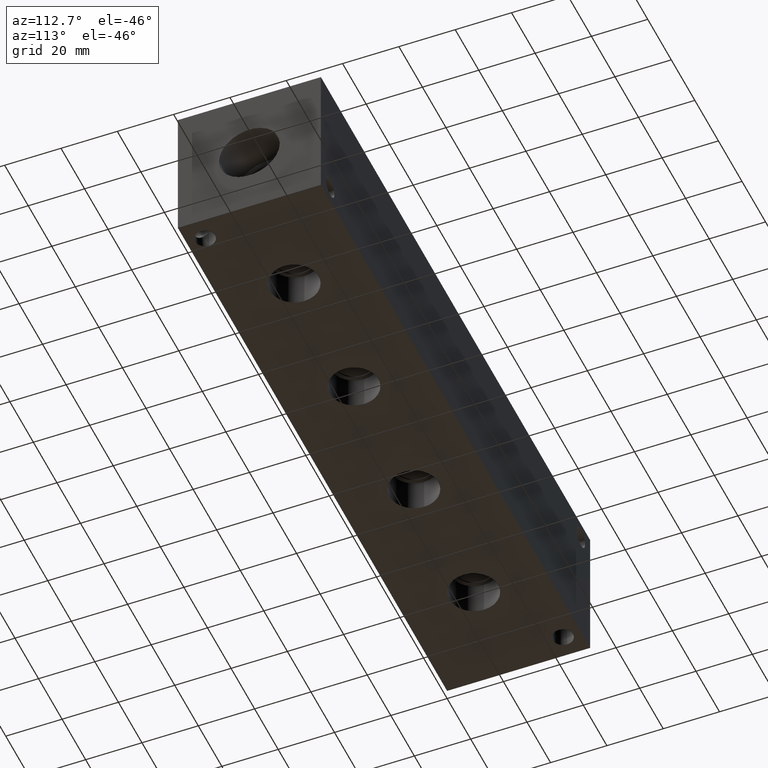
[diagram: clean part render]
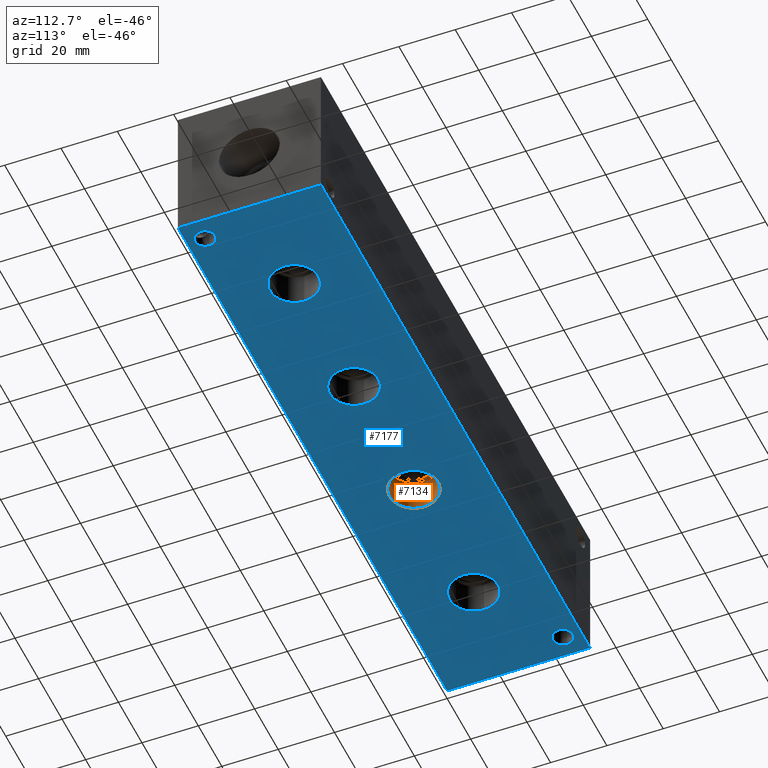
[diagram: same view with the hole feature highlighted: cylindrical wall and planar end face, labeled with their STEP entity ids]
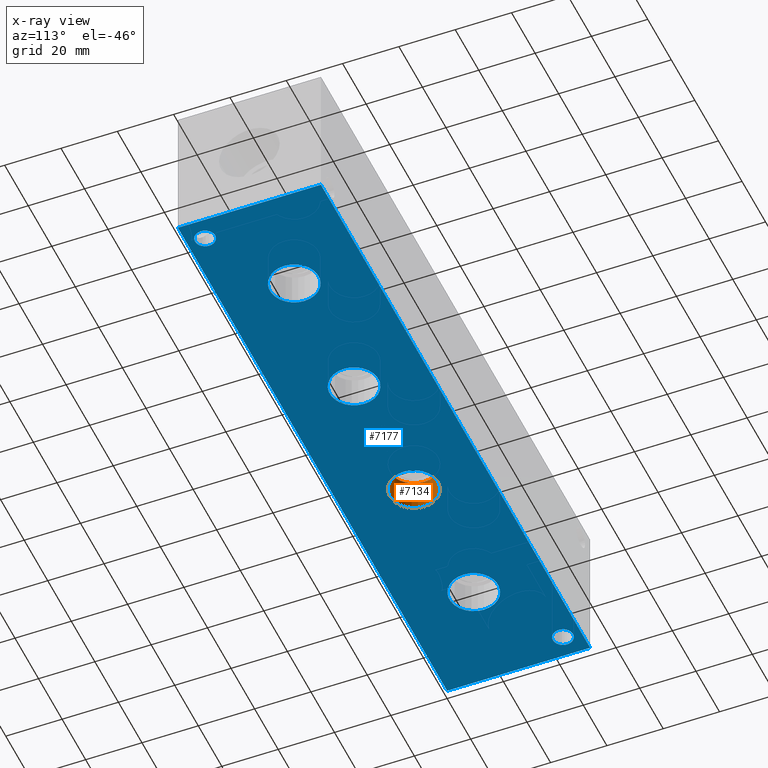
[diagram: x-ray of the same camera — body ghosted, the hole faces saturated]
A machine part, auxiliary view. The highlighted faces form one hole feature of diameter 17.2974 mm: the cylindrical wall (entity #7134, orange) and its adjacent planar end face (entity #7177, blue) — they share a circular edge in the B-rep.
The next image is the same camera in x-ray (body ghosted, the hole faces saturated) — the bore reads through the body.
Wall:
#26=CYLINDRICAL_SURFACE('',#7452,8.6487);
#88=CIRCLE('',#7449,8.6487);
#89=CIRCLE('',#7450,8.6487);
#91=CIRCLE('',#7453,8.6487);
#92=CIRCLE('',#7454,8.6487);
#755=FACE_OUTER_BOUND('',#1158,.T.);
#1158=EDGE_LOOP('',(#6199,#6200,#6201,#6202,#6203,#6204));
#1890=LINE('',#11980,#2598);
#2598=VECTOR('',#8752,8.6487);
#3414=VERTEX_POINT('',#11969);
#3415=VERTEX_POINT('',#11970);
#3417=VERTEX_POINT('',#11976);
#3418=VERTEX_POINT('',#11977);
#4362=EDGE_CURVE('',#3414,#3415,#88,.T.);
#4363=EDGE_CURVE('',#3415,#3414,#89,.T.);
#4365=EDGE_CURVE('',#3417,#3418,#91,.T.);
#4366=EDGE_CURVE('',#3418,#3417,#92,.T.);
#4367=EDGE_CURVE('',#3418,#3415,#1890,.T.);
#6199=ORIENTED_EDGE('',*,*,#4365,.F.);
#6200=ORIENTED_EDGE('',*,*,#4366,.F.);
#6201=ORIENTED_EDGE('',*,*,#4367,.T.);
#6202=ORIENTED_EDGE('',*,*,#4362,.F.);
#6203=ORIENTED_EDGE('',*,*,#4363,.F.);
#6204=ORIENTED_EDGE('',*,*,#4367,.F.);
#7134=ADVANCED_FACE('',(#755),#26,.F.);
#7449=AXIS2_PLACEMENT_3D('',#11971,#8740,#8741);
#7450=AXIS2_PLACEMENT_3D('',#11972,#8742,#8743);
#7452=AXIS2_PLACEMENT_3D('',#11975,#8746,#8747);
#7453=AXIS2_PLACEMENT_3D('',#11978,#8748,#8749);
#7454=AXIS2_PLACEMENT_3D('',#11979,#8750,#8751);
#8740=DIRECTION('center_axis',(0.,0.,-1.));
#8741=DIRECTION('ref_axis',(1.,0.,0.));
#8742=DIRECTION('center_axis',(0.,0.,-1.));
#8743=DIRECTION('ref_axis',(1.,0.,0.));
#8746=DIRECTION('center_axis',(0.,0.,-1.));
#8747=DIRECTION('ref_axis',(1.,0.,0.));
#8748=DIRECTION('center_axis',(0.,0.,1.));
#8749=DIRECTION('ref_axis',(1.,0.,0.));
#8750=DIRECTION('center_axis',(0.,0.,1.));
#8751=DIRECTION('ref_axis',(1.,0.,0.));
#8752=DIRECTION('',(0.,0.,1.));
#11969=CARTESIAN_POINT('',(97.5487,25.4,11.7348));
#11970=CARTESIAN_POINT('',(80.2513,25.4,11.7348));
#11971=CARTESIAN_POINT('Origin',(88.9,25.4,11.7348));
#11972=CARTESIAN_POINT('Origin',(88.9,25.4,11.7348));
#11975=CARTESIAN_POINT('Origin',(88.9,25.4,5.8674));
#11976=CARTESIAN_POINT('',(97.5487,25.4,0.));
#11977=CARTESIAN_POINT('',(80.2513,25.4,0.));
#11978=CARTESIAN_POINT('Origin',(88.9,25.4,0.));
#11979=CARTESIAN_POINT('Origin',(88.9,25.4,0.));
#11980=CARTESIAN_POINT('',(80.2513,25.4,5.8674));
End face:
#77=CIRCLE('',#7431,8.6487);
#78=CIRCLE('',#7432,8.6487);
#84=CIRCLE('',#7442,8.6487);
#85=CIRCLE('',#7443,8.6487);
#91=CIRCLE('',#7453,8.6487);
#92=CIRCLE('',#7454,8.6487);
#98=CIRCLE('',#7464,8.6487);
#99=CIRCLE('',#7465,8.6487);
#106=CIRCLE('',#7488,3.5687);
#107=CIRCLE('',#7490,3.5687);
#194=FACE_BOUND('',#1215,.T.);
#195=FACE_BOUND('',#1216,.T.);
#196=FACE_BOUND('',#1217,.T.);
#197=FACE_BOUND('',#1218,.T.);
#198=FACE_BOUND('',#1219,.T.);
#199=FACE_BOUND('',#1220,.T.);
#434=PLANE('',#7554);
#798=FACE_OUTER_BOUND('',#1214,.T.);
#1214=EDGE_LOOP('',(#6409,#6410,#6411,#6412));
#1215=EDGE_LOOP('',(#6413,#6414));
#1216=EDGE_LOOP('',(#6415,#6416));
#1217=EDGE_LOOP('',(#6417,#6418));
#1218=EDGE_LOOP('',(#6419,#6420));
#1219=EDGE_LOOP('',(#6421));
#1220=EDGE_LOOP('',(#6422));
#1921=LINE('',#12168,#2629);
#1924=LINE('',#12173,#2632);
#1926=LINE('',#12177,#2634);
#1928=LINE('',#12180,#2636);
#2629=VECTOR('',#8973,10.);
#2632=VECTOR('',#8978,10.);
#2634=VECTOR('',#8982,10.);
#2636=VECTOR('',#8986,10.);
#3401=VERTEX_POINT('',#11932);
#3402=VERTEX_POINT('',#11933);
#3409=VERTEX_POINT('',#11954);
#3410=VERTEX_POINT('',#11955);
#3417=VERTEX_POINT('',#11976);
#3418=VERTEX_POINT('',#11977);
#3425=VERTEX_POINT('',#11998);
#3426=VERTEX_POINT('',#11999);
#3437=VERTEX_POINT('',#12042);
#3438=VERTEX_POINT('',#12046);
#3479=VERTEX_POINT('',#12166);
#3480=VERTEX_POINT('',#12167);
#3481=VERTEX_POINT('',#12172);
#3482=VERTEX_POINT('',#12176);
#4345=EDGE_CURVE('',#3401,#3402,#77,.T.);
#4346=EDGE_CURVE('',#3402,#3401,#78,.T.);
#4355=EDGE_CURVE('',#3409,#3410,#84,.T.);
#4356=EDGE_CURVE('',#3410,#3409,#85,.T.);
#4365=EDGE_CURVE('',#3417,#3418,#91,.T.);
#4366=EDGE_CURVE('',#3418,#3417,#92,.T.);
#4375=EDGE_CURVE('',#3425,#3426,#98,.T.);
#4376=EDGE_CURVE('',#3426,#3425,#99,.T.);
#4400=EDGE_CURVE('',#3437,#3437,#106,.T.);
#4402=EDGE_CURVE('',#3438,#3438,#107,.T.);
#4455=EDGE_CURVE('',#3479,#3480,#1921,.T.);
#4458=EDGE_CURVE('',#3481,#3479,#1924,.T.);
#4460=EDGE_CURVE('',#3482,#3481,#1926,.T.);
#4462=EDGE_CURVE('',#3480,#3482,#1928,.T.);
#6409=ORIENTED_EDGE('',*,*,#4462,.F.);
#6410=ORIENTED_EDGE('',*,*,#4455,.F.);
#6411=ORIENTED_EDGE('',*,*,#4458,.F.);
#6412=ORIENTED_EDGE('',*,*,#4460,.F.);
#6413=ORIENTED_EDGE('',*,*,#4345,.T.);
#6414=ORIENTED_EDGE('',*,*,#4346,.T.);
#6415=ORIENTED_EDGE('',*,*,#4355,.T.);
#6416=ORIENTED_EDGE('',*,*,#4356,.T.);
#6417=ORIENTED_EDGE('',*,*,#4365,.T.);
#6418=ORIENTED_EDGE('',*,*,#4366,.T.);
#6419=ORIENTED_EDGE('',*,*,#4375,.T.);
#6420=ORIENTED_EDGE('',*,*,#4376,.T.);
#6421=ORIENTED_EDGE('',*,*,#4400,.T.);
#6422=ORIENTED_EDGE('',*,*,#4402,.T.);
#7177=ADVANCED_FACE('',(#798,#194,#195,#196,#197,#198,#199),#434,.F.);
#7431=AXIS2_PLACEMENT_3D('',#11934,#8698,#8699);
#7432=AXIS2_PLACEMENT_3D('',#11935,#8700,#8701);
#7442=AXIS2_PLACEMENT_3D('',#11956,#8723,#8724);
#7443=AXIS2_PLACEMENT_3D('',#11957,#8725,#8726);
#7453=AXIS2_PLACEMENT_3D('',#11978,#8748,#8749);
#7454=AXIS2_PLACEMENT_3D('',#11979,#8750,#8751);
#7464=AXIS2_PLACEMENT_3D('',#12000,#8773,#8774);
#7465=AXIS2_PLACEMENT_3D('',#12001,#8775,#8776);
#7488=AXIS2_PLACEMENT_3D('',#12044,#8830,#8831);
#7490=AXIS2_PLACEMENT_3D('',#12048,#8835,#8836);
#7554=AXIS2_PLACEMENT_3D('',#12182,#8989,#8990);
#8698=DIRECTION('center_axis',(0.,0.,1.));
#8699=DIRECTION('ref_axis',(1.,0.,0.));
#8700=DIRECTION('center_axis',(0.,0.,1.));
#8701=DIRECTION('ref_axis',(1.,0.,0.));
#8723=DIRECTION('center_axis',(0.,0.,1.));
#8724=DIRECTION('ref_axis',(1.,0.,0.));
#8725=DIRECTION('center_axis',(0.,0.,1.));
#8726=DIRECTION('ref_axis',(1.,0.,0.));
#8748=DIRECTION('center_axis',(0.,0.,1.));
#8749=DIRECTION('ref_axis',(1.,0.,0.));
#8750=DIRECTION('center_axis',(0.,0.,1.));
#8751=DIRECTION('ref_axis',(1.,0.,0.));
#8773=DIRECTION('center_axis',(0.,0.,1.));
#8774=DIRECTION('ref_axis',(1.,0.,0.));
#8775=DIRECTION('center_axis',(0.,0.,1.));
#8776=DIRECTION('ref_axis',(1.,0.,0.));
#8830=DIRECTION('center_axis',(0.,0.,1.));
#8831=DIRECTION('ref_axis',(1.,0.,0.));
#8835=DIRECTION('center_axis',(0.,0.,1.));
#8836=DIRECTION('ref_axis',(1.,0.,0.));
#8973=DIRECTION('',(0.,-1.,0.));
#8978=DIRECTION('',(-1.,0.,0.));
#8982=DIRECTION('',(0.,1.,0.));
#8986=DIRECTION('',(1.,0.,0.));
#8989=DIRECTION('center_axis',(0.,0.,1.));
#8990=DIRECTION('ref_axis',(1.,0.,0.));
#11932=CARTESIAN_POINT('',(148.3487,25.4,0.));
#11933=CARTESIAN_POINT('',(131.0513,25.4,0.));
#11934=CARTESIAN_POINT('Origin',(139.7,25.4,0.));
#11935=CARTESIAN_POINT('Origin',(139.7,25.4,0.));
#11954=CARTESIAN_POINT('',(46.7487,25.4,0.));
#11955=CARTESIAN_POINT('',(29.4513,25.4,0.));
#11956=CARTESIAN_POINT('Origin',(38.1,25.4,0.));
#11957=CARTESIAN_POINT('Origin',(38.1,25.4,0.));
#11976=CARTESIAN_POINT('',(97.5487,25.4,0.));
#11977=CARTESIAN_POINT('',(80.2513,25.4,0.));
#11978=CARTESIAN_POINT('Origin',(88.9,25.4,0.));
#11979=CARTESIAN_POINT('Origin',(88.9,25.4,0.));
#11998=CARTESIAN_POINT('',(199.1487,25.4,0.));
#11999=CARTESIAN_POINT('',(181.8513,25.4,0.));
#12000=CARTESIAN_POINT('Origin',(190.5,25.4,0.));
#12001=CARTESIAN_POINT('Origin',(190.5,25.4,0.));
#12042=CARTESIAN_POINT('',(4.3561,44.45,0.));
#12044=CARTESIAN_POINT('Origin',(7.9248,44.45,0.));
#12046=CARTESIAN_POINT('',(217.1065,6.35,0.));
#12048=CARTESIAN_POINT('Origin',(220.6752,6.35,0.));
#12166=CARTESIAN_POINT('',(0.,50.8,0.));
#12167=CARTESIAN_POINT('',(0.,0.,0.));
#12168=CARTESIAN_POINT('',(0.,50.8,0.));
#12172=CARTESIAN_POINT('',(228.6,50.8,0.));
#12173=CARTESIAN_POINT('',(228.6,50.8,0.));
#12176=CARTESIAN_POINT('',(228.6,0.,0.));
#12177=CARTESIAN_POINT('',(228.6,0.,0.));
#12180=CARTESIAN_POINT('',(0.,0.,0.));
#12182=CARTESIAN_POINT('Origin',(114.3,25.4,0.));